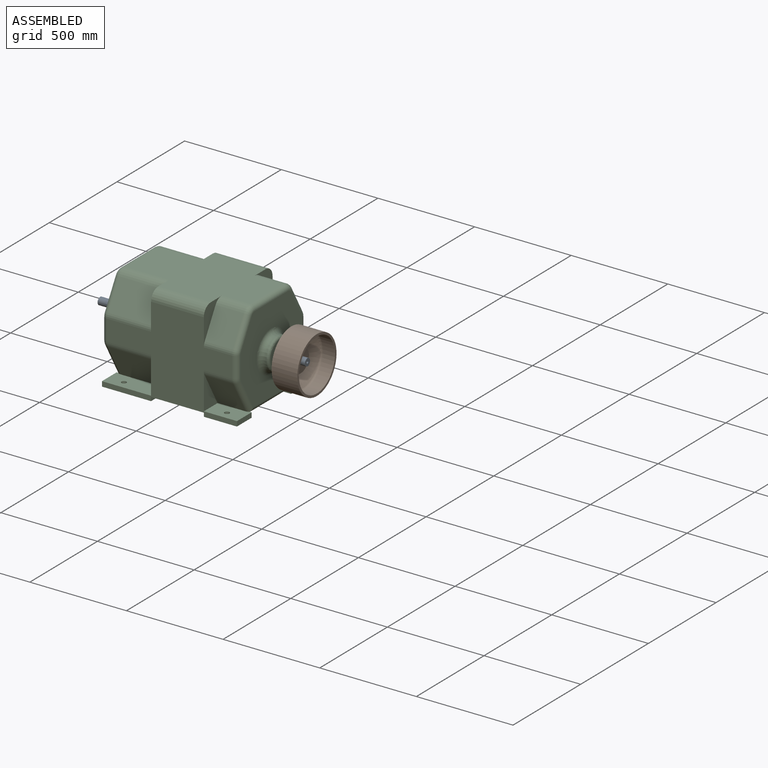
[diagram: assembled view]
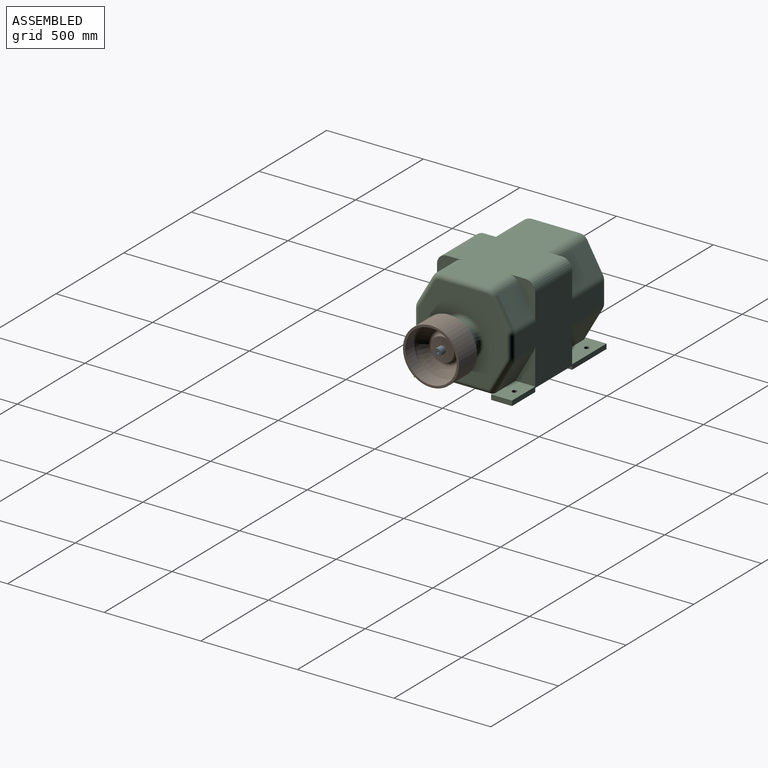
[diagram: assembled view, second angle]
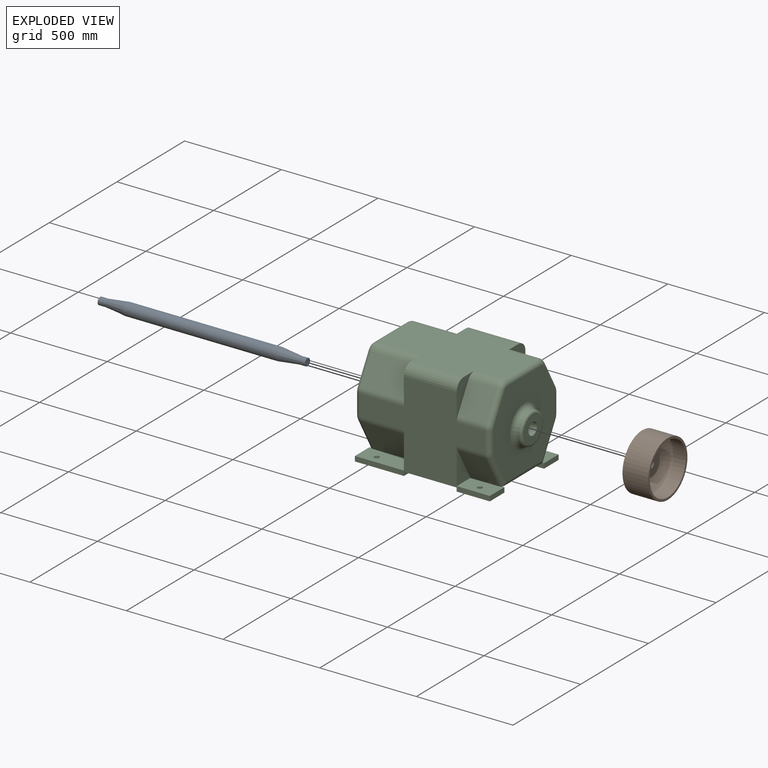
[diagram: exploded view]
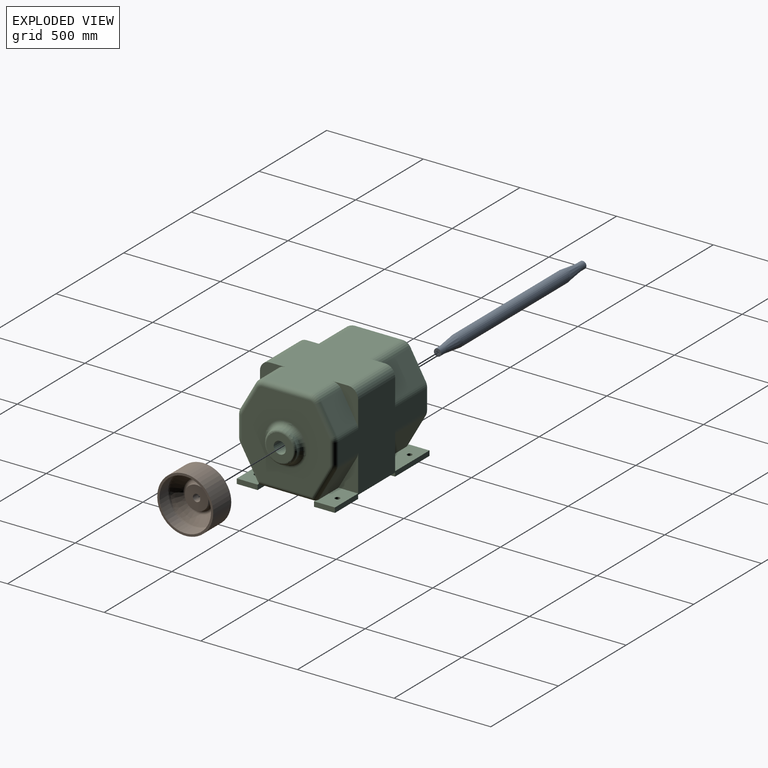
[diagram: exploded view, second angle]
ASSEMBLY  parts=3 mates=2
PART A: 11 faces, bbox 1072.9x63.5x63.5 mm
  f0: cylinder r=19.05mm len=38.1mm, axis (-1,0,0), area 4195.5mm2, adj f1,f2
  f1: plane 38.1x38.1mm, normal (-1,0,0), area 1013.4mm2, adj f0,f10
  f2: cone r=31.75mm half-angle=6.7deg, axis (1,0,0), area 17306.6mm2, adj f0,f3
  f3: cylinder r=31.75mm len=787.4mm, axis (-1,0,0), area 157079.3mm2, adj f2,f4
  f4: cone r=31.75mm half-angle=6.7deg, axis (-1,0,0), area 17306.6mm2, adj f3,f5
  f5: cylinder r=19.05mm len=38.1mm, axis (1,0,0), area 4195.5mm2, adj f4,f6
  f6: plane 38.1x38.1mm, normal (1,0,0), area 1013.4mm2, adj f5,f8
  f7: cone r=0mm half-angle=59deg, axis (1,0,0), area 147.8mm2, adj f8
  f8: cylinder r=6.35mm len=44.45mm, axis (1,0,0), area 1773.5mm2, adj f6,f7
  f9: cone r=0mm half-angle=59deg, axis (-1,0,0), area 147.8mm2, adj f10
  f10: cylinder r=6.35mm len=44.45mm, axis (-1,0,0), area 1773.5mm2, adj f1,f9
PART B: 16 faces, bbox 167.6x289.6x289.6 mm
  f0: plane 289.56x289.56mm, normal (1,0,0), area 9987.2mm2, adj f1,f11
  f1: cylinder r=144.78mm len=289.56mm, axis (-1,0,0), area 121305.8mm2, adj f0,f2
  f2: plane 289.56x289.56mm, normal (-1,0,0), area 9987.2mm2, adj f1,f3
  f3: cylinder r=133.35mm len=266.7mm, axis (-1,0,0), area 15148.3mm2, adj f2,f12
  f4: cone r=60.96mm half-angle=52.3deg, axis (1,0,0), area 29231.6mm2, adj f12,f13
  f5: cylinder r=60.96mm len=121.92mm, axis (-1,0,0), area 7653.4mm2, adj f6,f13
  f6: plane 121.92x121.92mm, normal (-1,0,0), area 10534.4mm2, adj f5,f7
  f7: cylinder r=19.05mm len=83.82mm, axis (-1,0,0), area 10032.8mm2, adj f6,f8
  f8: plane 121.92x121.92mm, normal (1,0,0), area 10534.4mm2, adj f7,f9
  f9: cylinder r=60.96mm len=121.92mm, axis (-1,0,0), area 4164.2mm2, adj f8,f14
  f10: cone r=60.96mm half-angle=52.3deg, axis (1,0,0), area 35434.3mm2, adj f14,f15
  f11: cylinder r=133.35mm len=266.7mm, axis (-1,0,0), area 52202.1mm2, adj f0,f15
  f12: torus R=118.11mm, axis (-1,0,0), area 26361mm2, adj f3,f4
  f13: torus R=76.2mm, axis (-1,0,0), area 5506.1mm2, adj f4,f5
  f14: torus R=76.2mm, axis (-1,0,0), area 15107.4mm2, adj f9,f10
  f15: torus R=118.11mm, axis (-1,0,0), area 11478.9mm2, adj f10,f11
PART C: 97 faces, bbox 787.4x516.4x520.1 mm
  f0: plane 647.7x508mm, normal (0,0,-1), area 248144.7mm2, adj f1,f3,f5,f8,f12,f18,f78,f80
  f1: plane 107.95x19.05mm, normal (-1,0,0), area 2056.4mm2, adj f0,f3,f5,f7
  f2: plane 171.45x107.95mm, normal (0,0,1), area 17005.4mm2, adj f3,f4,f5,f6,f9,f10,f19
  f3: plane 698.5x465.07mm, normal (0,-1,0), area 173015.3mm2, adj f0,f1,f2,f4,f7,f9,f23,f28
  f4: plane 107.95x25.4mm, normal (1,0,0), area 2741.9mm2, adj f2,f3,f5,f7
  f5: plane 171.45x25.4mm, normal (0,1,0), area 3355.2mm2, adj f0,f1,f2,f4,f7,f8,f10
  f6: cylinder r=12.7mm len=25.4mm, axis (0,0,-1), area 2026.8mm2, adj f2,f7
  f7: plane 171.45x107.95mm, normal (0,0,-1), area 18001.3mm2, adj f1,f3,f4,f5,f6
  f8: cylinder r=25.4mm len=292.1mm, axis (0,1,0), area 11387.5mm2, adj f0,f5,f10,f16,f46,f80
  f9: plane 191.29x101.6mm, normal (1,0,0), area 9047.7mm2, adj f2,f3,f19,f43
  f10: cylinder r=25.4mm len=182.68mm, axis (0,0.5,-0.87), area 7622.8mm2, adj f2,f5,f8,f16,f19,f50
  f11: plane 191.29x101.6mm, normal (-1,0,0), area 9047.7mm2, adj f18,f25,f34,f84
  f12: cylinder r=25.4mm len=292.1mm, axis (0,1,0), area 11387.5mm2, adj f0,f13,f15,f58,f86,f93
  f13: cylinder r=25.4mm len=182.68mm, axis (0,-0.5,-0.87), area 7622.8mm2, adj f12,f15,f25,f62,f84,f86
  f14: plane 191.29x101.6mm, normal (1,0,0), area 9047.7mm2, adj f18,f20,f42,f82
  f15: plane 457.2x446.02mm, normal (-1,0,0), area 137103.4mm2, adj f12,f13,f58,f59,f60,f61,f62,f63
  f16: plane 457.2x446.02mm, normal (1,0,0), area 137103.4mm2, adj f8,f10,f46,f47,f48,f49,f50,f51
  f17: plane 647.7x406.4mm, normal (0,0,1), area 203071.2mm2, adj f21,f23,f26,f28,f32,f36,f38,f40
  f18: plane 698.5x465.07mm, normal (0,1,0), area 173015.3mm2, adj f0,f11,f14,f21,f26,f33,f34,f41
  f19: plane 166.09x146.05mm, normal (0,-0.87,-0.5), area 27938mm2, adj f2,f9,f10,f43
  f20: plane 166.09x146.05mm, normal (0,0.87,-0.5), area 27938mm2, adj f14,f42,f46,f82
  f21: plane 191.29x131.08mm, normal (1,0,0), area 8634.5mm2, adj f17,f18,f22,f40,f41,f45
  f22: plane 146.05x140.49mm, normal (0,0.87,0.5), area 23632.4mm2, adj f21,f40,f41,f51
  f23: plane 191.29x131.08mm, normal (1,0,0), area 8634.5mm2, adj f3,f17,f24,f38,f39,f44
  f24: plane 146.05x140.49mm, normal (0,-0.87,0.5), area 23632.4mm2, adj f23,f38,f39,f56
  f25: plane 228.6x166.09mm, normal (0,0.87,-0.5), area 43729mm2, adj f11,f13,f34,f84
  f26: plane 191.29x131.08mm, normal (-1,0,0), area 8634.5mm2, adj f17,f18,f27,f32,f33,f45
  f27: plane 228.6x140.49mm, normal (0,0.87,0.5), area 36989.8mm2, adj f26,f32,f33,f68
  f28: plane 191.29x131.08mm, normal (-1,0,0), area 8634.5mm2, adj f3,f17,f29,f36,f37,f44
  f29: plane 228.6x140.49mm, normal (0,-0.87,0.5), area 36989.8mm2, adj f28,f36,f37,f63
  f30: plane 191.29x101.6mm, normal (-1,0,0), area 9047.7mm2, adj f3,f31,f35,f94
  f31: plane 228.6x166.09mm, normal (0,-0.87,-0.5), area 43729mm2, adj f30,f35,f58,f94
  f32: cylinder r=50.8mm len=228.6mm, axis (1,0,0), area 12212.7mm2, adj f17,f26,f27,f69
  f33: cylinder r=50.8mm len=228.6mm, axis (1,0,0), area 6028.8mm2, adj f18,f26,f27,f66
  f34: cylinder r=50.8mm len=228.6mm, axis (-1,0,0), area 6028.8mm2, adj f11,f18,f25,f62
  f35: cylinder r=50.8mm len=228.6mm, axis (-1,0,0), area 6028.8mm2, adj f3,f30,f31,f59
  f36: cylinder r=50.8mm len=228.6mm, axis (-1,0,0), area 12212.7mm2, adj f17,f28,f29,f65
  f37: cylinder r=50.8mm len=228.6mm, axis (1,0,0), area 6028.8mm2, adj f3,f28,f29,f61
  f38: cylinder r=50.8mm len=146.05mm, axis (-1,0,0), area 7802.6mm2, adj f17,f23,f24,f57
  f39: cylinder r=50.8mm len=146.05mm, axis (1,0,0), area 3851.7mm2, adj f3,f23,f24,f54
  f40: cylinder r=50.8mm len=146.05mm, axis (1,0,0), area 7802.6mm2, adj f17,f21,f22,f53
  f41: cylinder r=50.8mm len=146.05mm, axis (1,0,0), area 3851.7mm2, adj f18,f21,f22,f49
  f42: cylinder r=50.8mm len=146.05mm, axis (-1,0,0), area 3851.7mm2, adj f14,f18,f20,f47
  f43: cylinder r=50.8mm len=146.05mm, axis (-1,0,0), area 3851.7mm2, adj f3,f9,f19,f50
  f44: cylinder r=50.8mm len=273.05mm, axis (-1,0,0), area 21788.4mm2, adj f3,f17,f23,f28
  f45: cylinder r=50.8mm len=273.05mm, axis (1,0,0), area 21788.4mm2, adj f17,f18,f21,f26
  f46: cylinder r=25.4mm len=182.68mm, axis (0,0.5,0.87), area 7622.8mm2, adj f8,f16,f20,f47,f80,f82
  f47: torus R=25.4mm, axis (1,0,0), area 861mm2, adj f16,f42,f46,f48
  f48: cylinder r=25.4mm len=107.89mm, axis (0,0,1), area 4304.7mm2, adj f16,f18,f47,f49
  f49: torus R=25.4mm, axis (1,0,0), area 861mm2, adj f16,f41,f48,f51
  f50: torus R=25.4mm, axis (1,0,0), area 861mm2, adj f10,f16,f43,f52
  f51: cylinder r=25.4mm len=153.09mm, axis (0,-0.5,0.87), area 6455.9mm2, adj f16,f22,f49,f53
  f52: cylinder r=25.4mm len=107.89mm, axis (0,0,-1), area 4304.7mm2, adj f3,f16,f50,f54
  f53: torus R=25.4mm, axis (1,0,0), area 1744.2mm2, adj f16,f40,f51,f55
  f54: torus R=25.4mm, axis (1,0,0), area 861mm2, adj f16,f39,f52,f56
  f55: cylinder r=25.4mm len=245.84mm, axis (0,-1,0), area 9808.5mm2, adj f16,f17,f53,f57
  f56: cylinder r=25.4mm len=153.09mm, axis (0,-0.5,-0.87), area 6455.9mm2, adj f16,f24,f54,f57
  f57: torus R=25.4mm, axis (1,0,0), area 1744.2mm2, adj f16,f38,f55,f56
  f58: cylinder r=25.4mm len=182.68mm, axis (0,-0.5,0.87), area 7622.8mm2, adj f12,f15,f31,f59,f93,f94
  f59: torus R=25.4mm, axis (-1,0,0), area 861mm2, adj f15,f35,f58,f60
  f60: cylinder r=25.4mm len=107.89mm, axis (0,0,-1), area 4304.7mm2, adj f3,f15,f59,f61
  f61: torus R=25.4mm, axis (-1,0,0), area 861mm2, adj f15,f37,f60,f63
  f62: torus R=25.4mm, axis (-1,0,0), area 861mm2, adj f13,f15,f34,f64
  f63: cylinder r=25.4mm len=153.09mm, axis (0,0.5,0.87), area 6455.9mm2, adj f15,f29,f61,f65
  f64: cylinder r=25.4mm len=107.89mm, axis (0,0,1), area 4304.7mm2, adj f15,f18,f62,f66
  f65: torus R=25.4mm, axis (-1,0,0), area 1744.2mm2, adj f15,f36,f63,f67
  f66: torus R=25.4mm, axis (-1,0,0), area 861mm2, adj f15,f33,f64,f68
  f67: cylinder r=25.4mm len=245.84mm, axis (0,-1,0), area 9808.5mm2, adj f15,f17,f65,f69
  f68: cylinder r=25.4mm len=153.09mm, axis (0,0.5,-0.87), area 6455.9mm2, adj f15,f27,f66,f69
  f69: torus R=25.4mm, axis (-1,0,0), area 1744.2mm2, adj f15,f32,f67,f68
  f70: plane 139.7x139.7mm, normal (1,0,0), area 12161mm2, adj f77,f96
  f71: cylinder r=82.55mm len=165.1mm, axis (-1,0,0), area 3293.6mm2, adj f75,f77
  f72: cylinder r=82.55mm len=165.1mm, axis (-1,0,0), area 3293.6mm2, adj f74,f76
  f73: plane 139.7x139.7mm, normal (-1,0,0), area 12161mm2, adj f76,f96
  f74: torus R=107.95mm, axis (-1,0,0), area 23008.1mm2, adj f15,f72
  f75: torus R=107.95mm, axis (1,0,0), area 23008.1mm2, adj f16,f71
  f76: torus R=69.85mm, axis (1,0,0), area 9768.7mm2, adj f72,f73
  f77: torus R=69.85mm, axis (1,0,0), area 9768.7mm2, adj f70,f71
  f78: plane 107.95x19.05mm, normal (-1,0,0), area 2056.4mm2, adj f0,f18,f80,f83
  f79: plane 107.95x25.4mm, normal (1,0,0), area 2741.9mm2, adj f18,f80,f82,f83
  f80: plane 171.45x25.4mm, normal (0,-1,0), area 3355.2mm2, adj f0,f8,f46,f78,f79,f82,f83
  f81: cylinder r=12.7mm len=25.4mm, axis (0,0,-1), area 2026.8mm2, adj f82,f83
  f82: plane 171.45x107.95mm, normal (0,0,1), area 17005.4mm2, adj f14,f18,f20,f46,f79,f80,f81
  f83: plane 171.45x107.95mm, normal (0,0,-1), area 18001.3mm2, adj f18,f78,f79,f80,f81
  f84: plane 254x107.95mm, normal (0,0,1), area 25392.5mm2, adj f11,f13,f18,f25,f85,f86,f88
  f85: plane 107.95x25.4mm, normal (-1,0,0), area 2741.9mm2, adj f18,f84,f86,f89
  f86: plane 254x25.4mm, normal (0,-1,0), area 4927.8mm2, adj f0,f12,f13,f84,f85,f87,f89
  f87: plane 107.95x19.05mm, normal (1,0,0), area 2056.4mm2, adj f0,f18,f86,f89
  f88: cylinder r=12.7mm len=25.4mm, axis (0,0,-1), area 2026.8mm2, adj f84,f89
  f89: plane 254x107.95mm, normal (0,0,-1), area 26912.6mm2, adj f18,f85,f86,f87,f88
  f90: plane 107.95x19.05mm, normal (1,0,0), area 2056.4mm2, adj f0,f3,f93,f95
  f91: plane 107.95x25.4mm, normal (-1,0,0), area 2741.9mm2, adj f3,f93,f94,f95
  f92: cylinder r=12.7mm len=25.4mm, axis (0,0,-1), area 2026.8mm2, adj f94,f95
  f93: plane 254x25.4mm, normal (0,1,0), area 4927.8mm2, adj f0,f12,f58,f90,f91,f94,f95
  f94: plane 254x107.95mm, normal (0,0,1), area 25392.5mm2, adj f3,f30,f31,f58,f91,f92,f93
  f95: plane 254x107.95mm, normal (0,0,-1), area 26912.6mm2, adj f3,f90,f91,f92,f93
  f96: cylinder r=31.75mm len=787.4mm, axis (1,0,0), area 157079.3mm2, adj f70,f73
PLACE A t=(0,0,254)mm
PLACE B t=(518.54,0,254)mm
PLACE C at identity fixed
MATE fastened A.f0 <-> C.f71  axis (1,0,0) through (393.7,0,254)mm
MATE fastened B.f1 <-> A.f0  axis (1,0,0) through (501.4,0,254)mm
